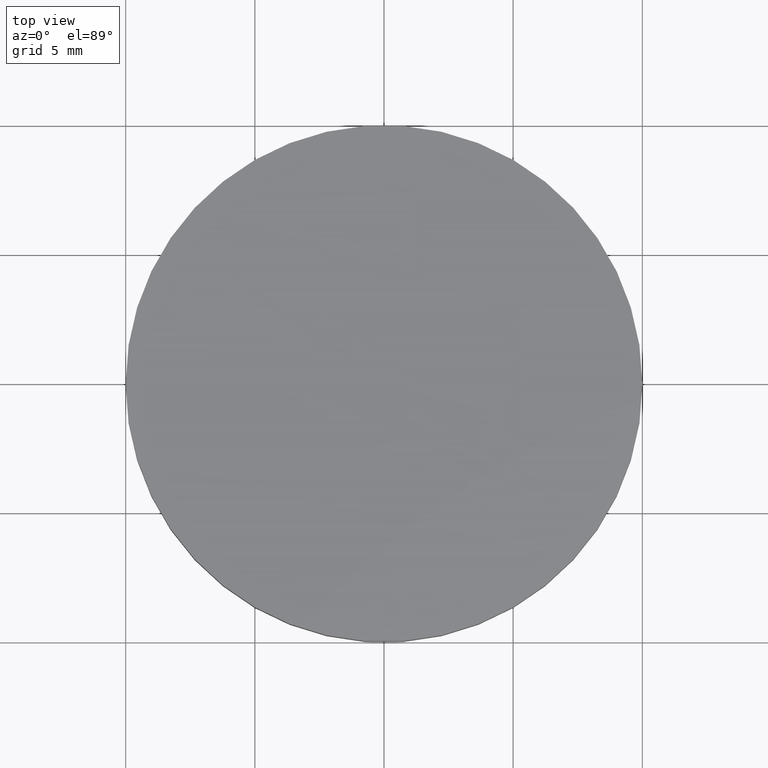
[diagram: clean part render]
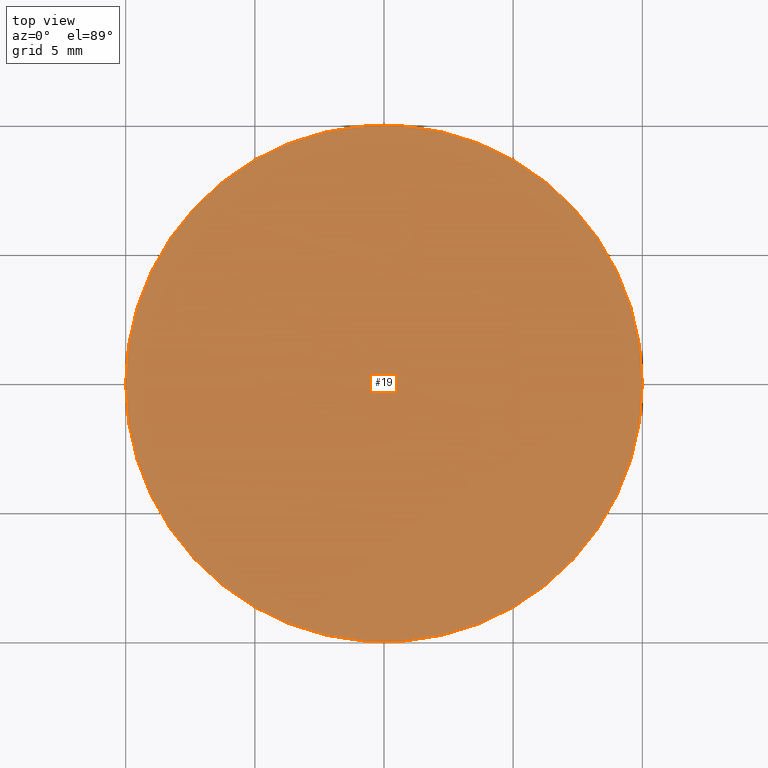
[diagram: same view with one face highlighted and labeled with its STEP entity id]
A machine part, top view. The second image highlights one B-rep face of the part: STEP entity #19.
In plain terms, the highlighted planar face has unit normal (0, 0, 1).
Its self-contained STEP definition (entity closure, byte-faithful):
#17 = AXIS2_PLACEMENT_3D ( 'NONE', #113, #26, #77 ) ;
#18 = VERTEX_POINT ( 'NONE', #50 ) ;
#19 = ADVANCED_FACE ( 'NONE', ( #36 ), #94, .T. ) ;
#26 = DIRECTION ( 'NONE',  ( 0.0000000000000000000, 0.0000000000000000000, 1.000000000000000000 ) ) ;
#32 = VERTEX_POINT ( 'NONE', #38 ) ;
#36 = FACE_OUTER_BOUND ( 'NONE', #53, .T. ) ;
#38 = CARTESIAN_POINT ( 'NONE',  ( 10.00000000000000000, 1.224646799147353300E-015, 2.000000000000000000 ) ) ;
#47 = DIRECTION ( 'NONE',  ( 1.000000000000000000, 0.0000000000000000000, -0.0000000000000000000 ) ) ;
#50 = CARTESIAN_POINT ( 'NONE',  ( -10.00000000000000000, 0.0000000000000000000, 2.000000000000000000 ) ) ;
#53 = EDGE_LOOP ( 'NONE', ( #68, #57 ) ) ;
#56 = EDGE_CURVE ( 'NONE', #18, #32, #64, .T. ) ;
#57 = ORIENTED_EDGE ( 'NONE', *, *, #71, .T. ) ;
#58 = AXIS2_PLACEMENT_3D ( 'NONE', #81, #62, #72 ) ;
#59 = AXIS2_PLACEMENT_3D ( 'NONE', #60, #95, #47 ) ;
#60 = CARTESIAN_POINT ( 'NONE',  ( 0.0000000000000000000, 0.0000000000000000000, 2.000000000000000000 ) ) ;
#62 = DIRECTION ( 'NONE',  ( 0.0000000000000000000, 0.0000000000000000000, 1.000000000000000000 ) ) ;
#64 = CIRCLE ( 'NONE', #17, 10.00000000000000000 ) ;
#68 = ORIENTED_EDGE ( 'NONE', *, *, #56, .T. ) ;
#71 = EDGE_CURVE ( 'NONE', #32, #18, #122, .T. ) ;
#72 = DIRECTION ( 'NONE',  ( 1.000000000000000000, 0.0000000000000000000, 0.0000000000000000000 ) ) ;
#77 = DIRECTION ( 'NONE',  ( 1.000000000000000000, 0.0000000000000000000, 0.0000000000000000000 ) ) ;
#81 = CARTESIAN_POINT ( 'NONE',  ( 0.0000000000000000000, 0.0000000000000000000, 2.000000000000000000 ) ) ;
#94 = PLANE ( 'NONE',  #59 ) ;
#95 = DIRECTION ( 'NONE',  ( 0.0000000000000000000, 0.0000000000000000000, 1.000000000000000000 ) ) ;
#113 = CARTESIAN_POINT ( 'NONE',  ( 0.0000000000000000000, 0.0000000000000000000, 2.000000000000000000 ) ) ;
#122 = CIRCLE ( 'NONE', #58, 10.00000000000000000 ) ;